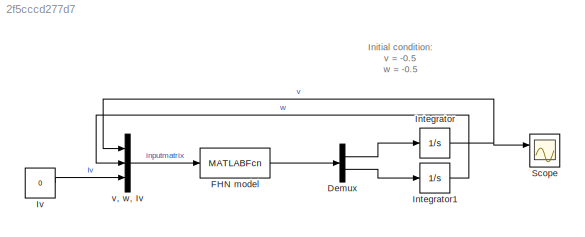
MODEL slx_2f5cccd277d7
KIND model
CONFIG AbsTol = auto
CONFIG EnableMultiTasking = off
CONFIG FixedStep = auto
CONFIG MaxStep = auto
CONFIG MinStep = auto
CONFIG RelTol = 1e-3
CONFIG SampleTimeConstraint = Unconstrained
CONFIG SolverName = VariableStepAuto
CONFIG StartTime = 0.0
CONFIG StopTime = 10.0
BLOCK [Demux] Demux
  Outputs = 2
  Ports = [1, 2]
BLOCK [MATLABFcn] FHN model
  MATLABFcn = fhnmodel
  OutputDimensions = 1
  Ports = [1, 1]
BLOCK [Integrator] Integrator
  InitialCondition = -0.5
  Ports = [1, 1]
BLOCK [Integrator] Integrator1
  InitialCondition = -0.5
  Ports = [1, 1]
BLOCK [Constant] Iv
  Value = 0
BLOCK [Scope] Scope
  Floating = off
  NumInputPorts = 2
  Ports = [2]
  ScopeSpecificationString = Simulink.scopes.TimeScopeBlockCfg('CurrentConfiguration', extmgr.ConfigurationSet(extmgr.Configuration('Core','General UI',true,'FigureColor',[1 1 1]),extmgr.Configuration('Core','Source UI',true),extmgr.Configuration('Sources','WiredSimulink',true),extmgr.Configuration('Visuals','Time Domain',true,'SerializedDisplays',{struct('MinYLimReal','-2.20208','MaxYLimReal','0.24468','YLabelReal','','MinYL...<+1581ch>
BLOCK [Mux] v, w, Iv
  DisplayOption = bar
  Inputs = 3
  Ports = [3, 1]
ANNOTATION (root): Initial condition: v = -0.5 w = -0.5
LINE Demux:1 -> Integrator:1
LINE Demux:2 -> Integrator1:1
LINE FHN model:1 -> Demux:1
LINE Integrator1:1 -> v, w, Iv:2
NET Integrator:1 -> Scope:1, v, w, Iv:1
LINE Iv:1 -> v, w, Iv:3
LINE v, w, Iv:1 -> FHN model:1
note: NET lines group one-source signal fan-out (src -> all destinations, sorted); 1:1 wires keep LINE
